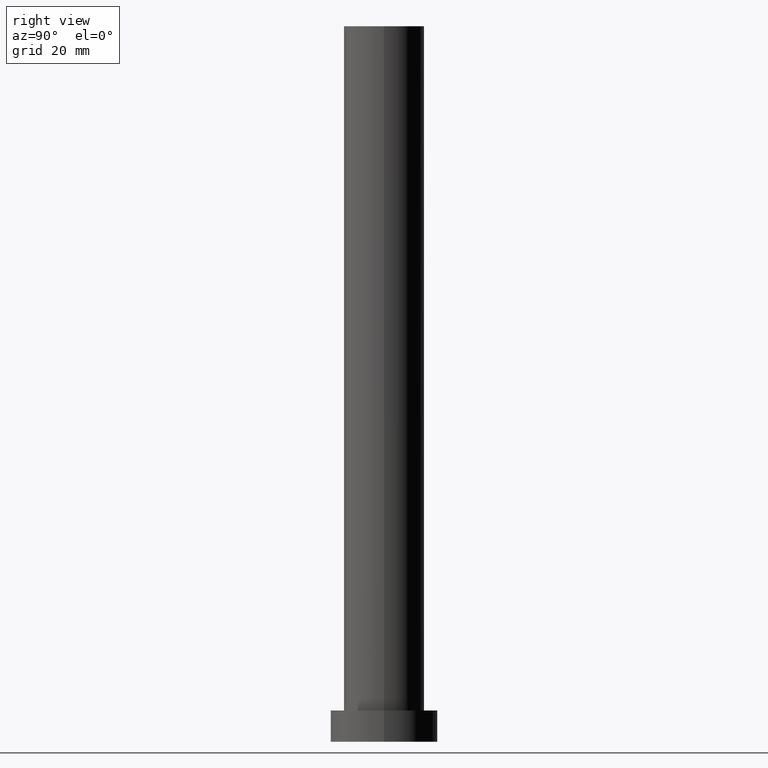
[diagram: clean part render]
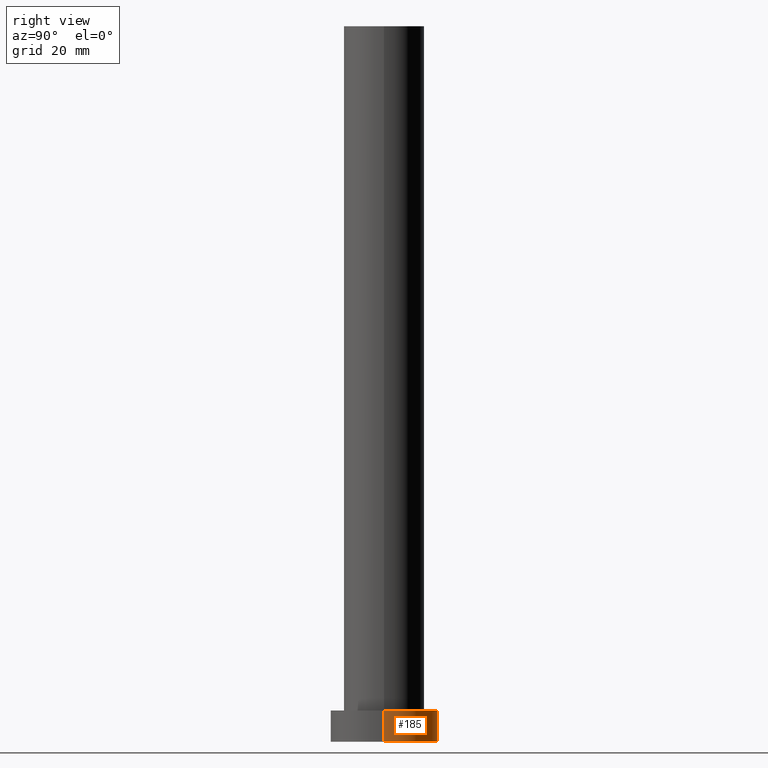
[diagram: same view with one face highlighted and labeled with its STEP entity id]
A machine part, right view. The second image highlights one B-rep face of the part: STEP entity #185.
In plain terms, the highlighted cylindrical surface (partial cylindrical patch) has radius 12 mm, axis along (-0, -0, -1).
Its self-contained STEP definition (entity closure, byte-faithful):
#3 = VERTEX_POINT ( 'NONE', #44 ) ;
#6 = LINE ( 'NONE', #86, #38 ) ;
#12 = DIRECTION ( 'NONE',  ( 0.000000000000000000, 0.000000000000000000, 1.000000000000000000 ) ) ;
#19 = CIRCLE ( 'NONE', #157, 12.00000000000000178 ) ;
#21 = EDGE_CURVE ( 'NONE', #194, #199, #19, .T. ) ;
#22 = ORIENTED_EDGE ( 'NONE', *, *, #21, .T. ) ;
#25 = ORIENTED_EDGE ( 'NONE', *, *, #40, .T. ) ;
#31 = DIRECTION ( 'NONE',  ( -0.000000000000000000, -0.000000000000000000, -1.000000000000000000 ) ) ;
#38 = VECTOR ( 'NONE', #112, 1000.000000000000000 ) ;
#40 = EDGE_CURVE ( 'NONE', #3, #194, #202, .T. ) ;
#43 = AXIS2_PLACEMENT_3D ( 'NONE', #165, #247, #201 ) ;
#44 = CARTESIAN_POINT ( 'NONE',  ( 12.00000000000000178, 1.469576158976824144E-15, 7.000000000000000000 ) ) ;
#48 = DIRECTION ( 'NONE',  ( 0.000000000000000000, 0.000000000000000000, 1.000000000000000000 ) ) ;
#50 = CARTESIAN_POINT ( 'NONE',  ( 0.000000000000000000, 0.000000000000000000, 7.000000000000000000 ) ) ;
#66 = DIRECTION ( 'NONE',  ( 1.000000000000000000, 0.000000000000000000, 0.000000000000000000 ) ) ;
#78 = EDGE_CURVE ( 'NONE', #103, #199, #6, .T. ) ;
#81 = EDGE_LOOP ( 'NONE', ( #253, #25, #22, #159 ) ) ;
#86 = CARTESIAN_POINT ( 'NONE',  ( -12.00000000000000178, 0.000000000000000000, 7.000000000000000000 ) ) ;
#89 = CYLINDRICAL_SURFACE ( 'NONE', #43, 12.00000000000000178 ) ;
#103 = VERTEX_POINT ( 'NONE', #122 ) ;
#105 = CARTESIAN_POINT ( 'NONE',  ( 12.00000000000000178, 1.469576158976824144E-15, 7.000000000000000000 ) ) ;
#109 = CARTESIAN_POINT ( 'NONE',  ( 0.000000000000000000, 0.000000000000000000, 0.000000000000000000 ) ) ;
#112 = DIRECTION ( 'NONE',  ( -0.000000000000000000, -0.000000000000000000, -1.000000000000000000 ) ) ;
#115 = AXIS2_PLACEMENT_3D ( 'NONE', #50, #48, #66 ) ;
#122 = CARTESIAN_POINT ( 'NONE',  ( -12.00000000000000178, 0.000000000000000000, 7.000000000000000000 ) ) ;
#147 = EDGE_CURVE ( 'NONE', #3, #103, #225, .T. ) ;
#157 = AXIS2_PLACEMENT_3D ( 'NONE', #109, #12, #187 ) ;
#159 = ORIENTED_EDGE ( 'NONE', *, *, #78, .F. ) ;
#163 = CARTESIAN_POINT ( 'NONE',  ( 12.00000000000000178, 1.469576158976824144E-15, 0.000000000000000000 ) ) ;
#165 = CARTESIAN_POINT ( 'NONE',  ( 0.000000000000000000, 0.000000000000000000, 7.000000000000000000 ) ) ;
#185 = ADVANCED_FACE ( 'NONE', ( #205 ), #89, .T. ) ;
#187 = DIRECTION ( 'NONE',  ( 1.000000000000000000, 0.000000000000000000, 0.000000000000000000 ) ) ;
#194 = VERTEX_POINT ( 'NONE', #163 ) ;
#199 = VERTEX_POINT ( 'NONE', #226 ) ;
#201 = DIRECTION ( 'NONE',  ( -1.000000000000000000, 0.000000000000000000, 0.000000000000000000 ) ) ;
#202 = LINE ( 'NONE', #105, #203 ) ;
#203 = VECTOR ( 'NONE', #31, 1000.000000000000000 ) ;
#205 = FACE_OUTER_BOUND ( 'NONE', #81, .T. ) ;
#225 = CIRCLE ( 'NONE', #115, 12.00000000000000178 ) ;
#226 = CARTESIAN_POINT ( 'NONE',  ( -12.00000000000000178, 0.000000000000000000, 0.000000000000000000 ) ) ;
#247 = DIRECTION ( 'NONE',  ( -0.000000000000000000, -0.000000000000000000, -1.000000000000000000 ) ) ;
#253 = ORIENTED_EDGE ( 'NONE', *, *, #147, .F. ) ;